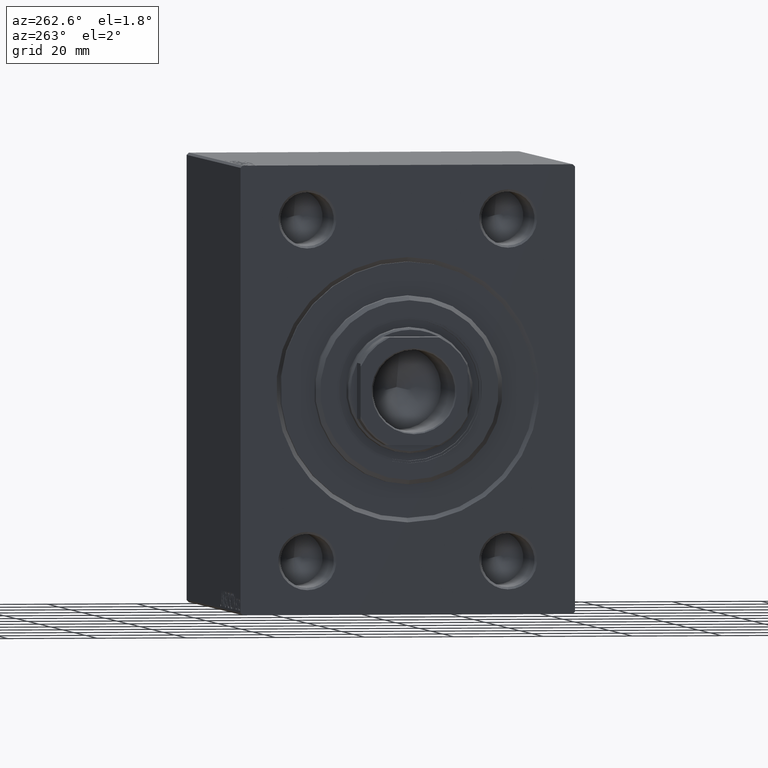
[diagram: clean part render]
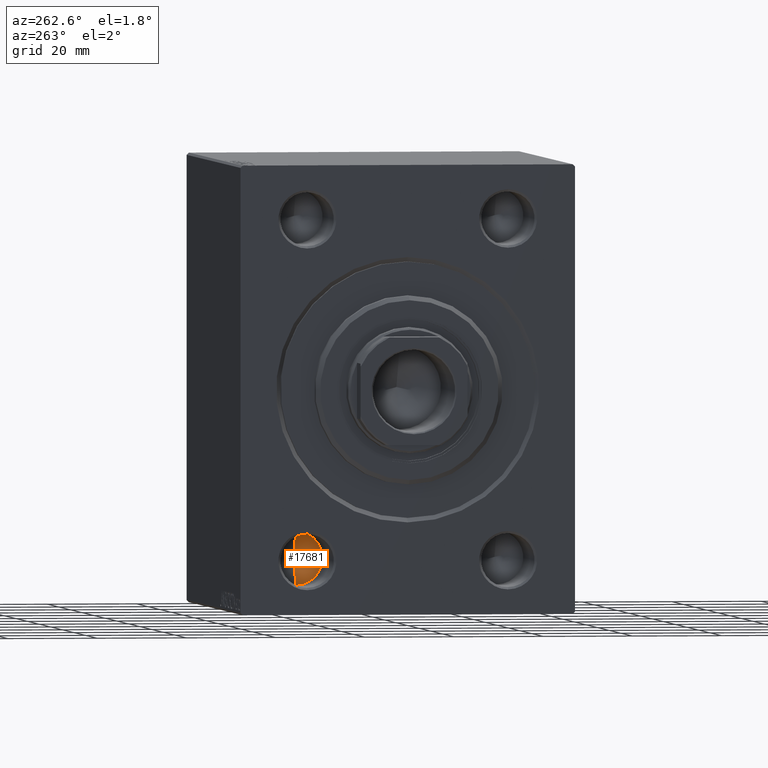
[diagram: same view with one face highlighted and labeled with its STEP entity id]
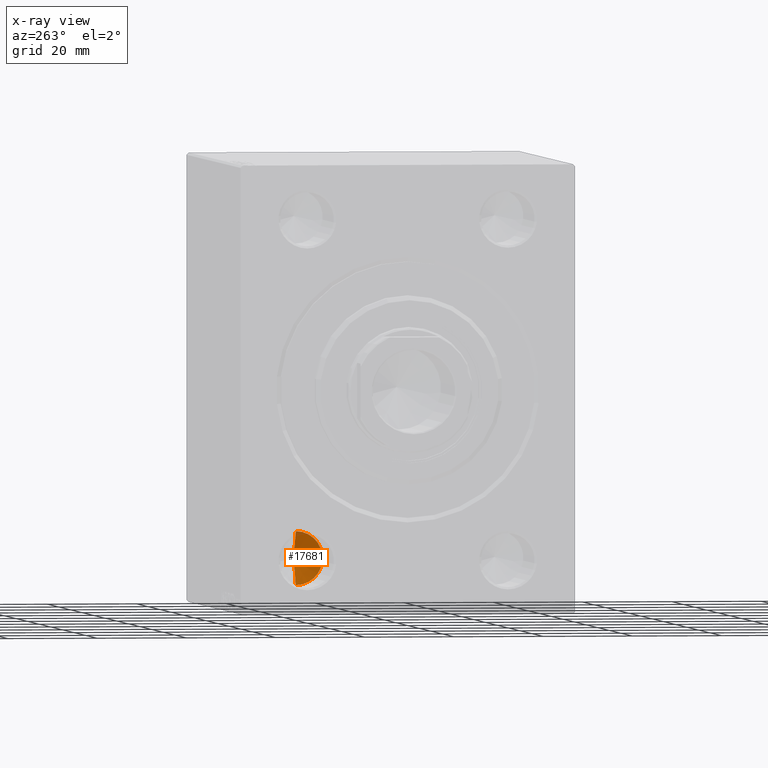
[diagram: x-ray of the same camera — body ghosted, the highlighted face saturated]
A machine part, auxiliary view. The second image highlights one B-rep face of the part: STEP entity #17681.
The next image is the same camera in x-ray: the body ghosted, the highlighted face saturated — about 3% of this face is hidden behind the body in this view.
In plain terms, the highlighted conical surface has half-angle 59 deg.
Its self-contained STEP definition (entity closure, byte-faithful):
#165 = DIRECTION ( 'NONE',  ( 0.000000000000000000, 0.000000000000000000, 1.000000000000000000 ) ) ;
#2493 = EDGE_CURVE ( 'NONE', #40820, #28281, #37824, .T. ) ;
#3102 = EDGE_LOOP ( 'NONE', ( #30098, #37475, #21512 ) ) ;
#4872 = AXIS2_PLACEMENT_3D ( 'NONE', #34991, #37474, #165 ) ;
#5177 = AXIS2_PLACEMENT_3D ( 'NONE', #6597, #34663, #10634 ) ;
#5722 = CARTESIAN_POINT ( 'NONE',  ( 20.00000000000000000, 22.50000000000000000, -32.00000000000000711 ) ) ;
#6597 = CARTESIAN_POINT ( 'NONE',  ( 20.00000000000000000, 22.50000000000000000, -38.00000000000000711 ) ) ;
#6827 = CARTESIAN_POINT ( 'NONE',  ( 20.00000000000000000, 22.50000000000000000, -44.00000000000000711 ) ) ;
#8653 = CARTESIAN_POINT ( 'NONE',  ( 20.00000000000000000, 22.50000000000000000, -44.00000000000000711 ) ) ;
#10634 = DIRECTION ( 'NONE',  ( 0.000000000000000000, 0.000000000000000000, 1.000000000000000000 ) ) ;
#17681 = ADVANCED_FACE ( 'NONE', ( #17923 ), #24256, .F. ) ;
#17923 = FACE_OUTER_BOUND ( 'NONE', #3102, .T. ) ;
#19431 = DIRECTION ( 'NONE',  ( -0.5150380749100549327, 0.000000000000000000, 0.8571673007021118895 ) ) ;
#20278 = CIRCLE ( 'NONE', #5177, 5.999999999999998224 ) ;
#21512 = ORIENTED_EDGE ( 'NONE', *, *, #33046, .T. ) ;
#21585 = VECTOR ( 'NONE', #19431, 1000.000000000000000 ) ;
#24256 = CONICAL_SURFACE ( 'NONE', #4872, 5.999999999999998224, 1.029744258676653645 ) ;
#26162 = LINE ( 'NONE', #5722, #21585 ) ;
#26251 = CARTESIAN_POINT ( 'NONE',  ( 20.00000000000000000, 22.50000000000000000, -32.00000000000000711 ) ) ;
#28281 = VERTEX_POINT ( 'NONE', #8653 ) ;
#28430 = EDGE_CURVE ( 'NONE', #40820, #43596, #26162, .T. ) ;
#28796 = CARTESIAN_POINT ( 'NONE',  ( 23.60516371416536430, 22.49999999999999289, -38.00000000000000711 ) ) ;
#30098 = ORIENTED_EDGE ( 'NONE', *, *, #28430, .F. ) ;
#31305 = DIRECTION ( 'NONE',  ( -0.5150380749100549327, 1.049727191138618079E-16, -0.8571673007021118895 ) ) ;
#32157 = VECTOR ( 'NONE', #31305, 1000.000000000000000 ) ;
#33046 = EDGE_CURVE ( 'NONE', #28281, #43596, #20278, .T. ) ;
#34663 = DIRECTION ( 'NONE',  ( -1.000000000000000000, -0.000000000000000000, -0.000000000000000000 ) ) ;
#34991 = CARTESIAN_POINT ( 'NONE',  ( 20.00000000000000000, 22.50000000000000000, -38.00000000000000711 ) ) ;
#37474 = DIRECTION ( 'NONE',  ( -1.000000000000000000, -0.000000000000000000, -0.000000000000000000 ) ) ;
#37475 = ORIENTED_EDGE ( 'NONE', *, *, #2493, .T. ) ;
#37824 = LINE ( 'NONE', #6827, #32157 ) ;
#40820 = VERTEX_POINT ( 'NONE', #28796 ) ;
#43596 = VERTEX_POINT ( 'NONE', #26251 ) ;